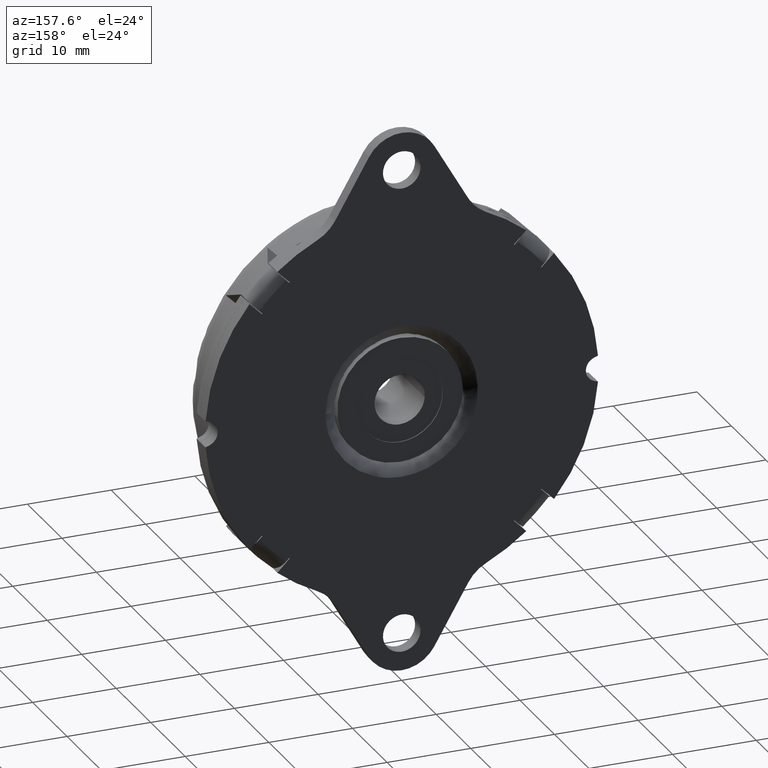
[diagram: clean part render]
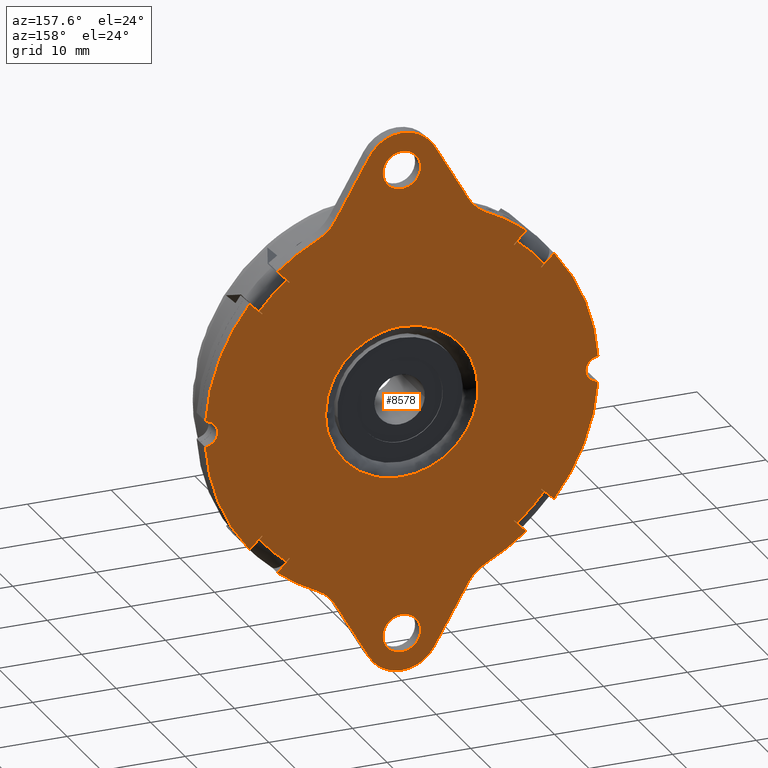
[diagram: same view with one face highlighted and labeled with its STEP entity id]
A machine part, auxiliary view. The second image highlights one B-rep face of the part: STEP entity #8578.
In plain terms, the highlighted face is a freeform B-spline surface patch.
Its self-contained STEP definition (entity closure, byte-faithful):
#3176=CARTESIAN_POINT('',(-2.243064000891092,6.938894E-018,28.176532965494960));
#3177=VERTEX_POINT('',#3176);
#3183=CARTESIAN_POINT('',(0.0,0.0,30.250000000000000));
#3184=VERTEX_POINT('',#3183);
#3185=CARTESIAN_POINT('',(0.0,0.0,30.250000000000000));
#3186=CARTESIAN_POINT('',(-2.079878606031345,0.0,30.249999999999996));
#3187=CARTESIAN_POINT('',(-2.243064000891093,6.938894E-018,28.176532965494964));
#3195=(BOUNDED_CURVE()B_SPLINE_CURVE(2,(#3185,#3186,#3187),.UNSPECIFIED.,.F.,.U.)B_SPLINE_CURVE_WITH_KNOTS((3,3),(0.0,0.236331300616365),.UNSPECIFIED.)CURVE()GEOMETRIC_REPRESENTATION_ITEM()RATIONAL_B_SPLINE_CURVE((1.0,0.723120658624413,0.969723356137586))REPRESENTATION_ITEM(''));
#3196=EDGE_CURVE('',#3184,#3177,#3195,.T.);
#3198=CARTESIAN_POINT('',(2.243064000891092,6.938894E-018,27.823467034505040));
#3199=VERTEX_POINT('',#3198);
#3200=CARTESIAN_POINT('',(2.243064000891093,6.938894E-018,27.823467034505040));
#3201=CARTESIAN_POINT('',(2.250000000000000,0.0,27.911597259124942));
#3202=CARTESIAN_POINT('',(2.250000000000000,0.0,28.0));
#3203=CARTESIAN_POINT('',(2.250000000000000,0.0,30.250000000000000));
#3204=CARTESIAN_POINT('',(0.0,0.0,30.250000000000000));
#3212=(BOUNDED_CURVE()B_SPLINE_CURVE(2,(#3200,#3201,#3202,#3203,#3204),.UNSPECIFIED.,.F.,.U.)B_SPLINE_CURVE_WITH_KNOTS((3,2,3),(0.736331300616365,0.750000000000000,1.0),.UNSPECIFIED.)CURVE()GEOMETRIC_REPRESENTATION_ITEM()RATIONAL_B_SPLINE_CURVE((0.969723356137586,0.983986122562134,1.0,0.707106781186547,1.0))REPRESENTATION_ITEM(''));
#3213=EDGE_CURVE('',#3199,#3184,#3212,.T.);
#3289=CARTESIAN_POINT('',(0.0,0.0,25.750000000000000));
#3290=VERTEX_POINT('',#3289);
#3291=CARTESIAN_POINT('',(0.0,0.0,25.750000000000000));
#3292=CARTESIAN_POINT('',(2.079878606031331,0.0,25.750000000000014));
#3293=CARTESIAN_POINT('',(2.243064000891092,6.938894E-018,27.823467034505036));
#3301=(BOUNDED_CURVE()B_SPLINE_CURVE(2,(#3291,#3292,#3293),.UNSPECIFIED.,.F.,.U.)B_SPLINE_CURVE_WITH_KNOTS((3,3),(0.500000000000000,0.736331300616364),.UNSPECIFIED.)CURVE()GEOMETRIC_REPRESENTATION_ITEM()RATIONAL_B_SPLINE_CURVE((1.0,0.723120658624414,0.969723356137583))REPRESENTATION_ITEM(''));
#3302=EDGE_CURVE('',#3290,#3199,#3301,.T.);
#3304=CARTESIAN_POINT('',(-2.243064000891093,6.938894E-018,28.176532965494964));
#3305=CARTESIAN_POINT('',(-2.250000000000000,0.0,28.088402740875068));
#3306=CARTESIAN_POINT('',(-2.250000000000000,0.0,28.0));
#3307=CARTESIAN_POINT('',(-2.250000000000000,0.0,25.750000000000004));
#3308=CARTESIAN_POINT('',(0.0,0.0,25.750000000000000));
#3316=(BOUNDED_CURVE()B_SPLINE_CURVE(2,(#3304,#3305,#3306,#3307,#3308),.UNSPECIFIED.,.F.,.U.)B_SPLINE_CURVE_WITH_KNOTS((3,2,3),(0.236331300616365,0.250000000000000,0.500000000000000),.UNSPECIFIED.)CURVE()GEOMETRIC_REPRESENTATION_ITEM()RATIONAL_B_SPLINE_CURVE((0.969723356137586,0.983986122562134,1.0,0.707106781186547,1.0))REPRESENTATION_ITEM(''));
#3317=EDGE_CURVE('',#3177,#3290,#3316,.T.);
#3358=CARTESIAN_POINT('',(-2.243064000891092,6.938894E-018,-27.823467034505040));
#3359=VERTEX_POINT('',#3358);
#3365=CARTESIAN_POINT('',(0.0,0.0,-25.750000000000000));
#3366=VERTEX_POINT('',#3365);
#3367=CARTESIAN_POINT('',(0.0,0.0,-25.750000000000000));
#3368=CARTESIAN_POINT('',(-2.079878606031341,0.0,-25.750000000000007));
#3369=CARTESIAN_POINT('',(-2.243064000891092,6.938894E-018,-27.823467034505033));
#3377=(BOUNDED_CURVE()B_SPLINE_CURVE(2,(#3367,#3368,#3369),.UNSPECIFIED.,.F.,.U.)B_SPLINE_CURVE_WITH_KNOTS((3,3),(0.0,0.236331300616364),.UNSPECIFIED.)CURVE()GEOMETRIC_REPRESENTATION_ITEM()RATIONAL_B_SPLINE_CURVE((1.0,0.723120658624413,0.969723356137585))REPRESENTATION_ITEM(''));
#3378=EDGE_CURVE('',#3366,#3359,#3377,.T.);
#3380=CARTESIAN_POINT('',(2.243064000891092,6.938894E-018,-28.176532965494960));
#3381=VERTEX_POINT('',#3380);
#3382=CARTESIAN_POINT('',(2.243064000891093,6.938894E-018,-28.176532965494964));
#3383=CARTESIAN_POINT('',(2.250000000000000,0.0,-28.088402740875068));
#3384=CARTESIAN_POINT('',(2.250000000000000,0.0,-28.0));
#3385=CARTESIAN_POINT('',(2.250000000000000,0.0,-25.750000000000004));
#3386=CARTESIAN_POINT('',(0.0,0.0,-25.750000000000000));
#3394=(BOUNDED_CURVE()B_SPLINE_CURVE(2,(#3382,#3383,#3384,#3385,#3386),.UNSPECIFIED.,.F.,.U.)B_SPLINE_CURVE_WITH_KNOTS((3,2,3),(0.736331300616365,0.750000000000000,1.0),.UNSPECIFIED.)CURVE()GEOMETRIC_REPRESENTATION_ITEM()RATIONAL_B_SPLINE_CURVE((0.969723356137586,0.983986122562134,1.0,0.707106781186547,1.0))REPRESENTATION_ITEM(''));
#3395=EDGE_CURVE('',#3381,#3366,#3394,.T.);
#3471=CARTESIAN_POINT('',(0.0,0.0,-30.250000000000000));
#3472=VERTEX_POINT('',#3471);
#3473=CARTESIAN_POINT('',(0.0,0.0,-30.250000000000000));
#3474=CARTESIAN_POINT('',(2.079878606031331,0.0,-30.249999999999996));
#3475=CARTESIAN_POINT('',(2.243064000891092,6.938894E-018,-28.176532965494960));
#3483=(BOUNDED_CURVE()B_SPLINE_CURVE(2,(#3473,#3474,#3475),.UNSPECIFIED.,.F.,.U.)B_SPLINE_CURVE_WITH_KNOTS((3,3),(0.500000000000000,0.736331300616364),.UNSPECIFIED.)CURVE()GEOMETRIC_REPRESENTATION_ITEM()RATIONAL_B_SPLINE_CURVE((1.0,0.723120658624414,0.969723356137583))REPRESENTATION_ITEM(''));
#3484=EDGE_CURVE('',#3472,#3381,#3483,.T.);
#3486=CARTESIAN_POINT('',(-2.243064000891092,6.938894E-018,-27.823467034505036));
#3487=CARTESIAN_POINT('',(-2.250000000000000,0.0,-27.911597259124928));
#3488=CARTESIAN_POINT('',(-2.250000000000000,0.0,-28.0));
#3489=CARTESIAN_POINT('',(-2.250000000000000,0.0,-30.250000000000000));
#3490=CARTESIAN_POINT('',(0.0,0.0,-30.250000000000000));
#3498=(BOUNDED_CURVE()B_SPLINE_CURVE(2,(#3486,#3487,#3488,#3489,#3490),.UNSPECIFIED.,.F.,.U.)B_SPLINE_CURVE_WITH_KNOTS((3,2,3),(0.236331300616364,0.250000000000000,0.500000000000000),.UNSPECIFIED.)CURVE()GEOMETRIC_REPRESENTATION_ITEM()RATIONAL_B_SPLINE_CURVE((0.969723356137585,0.983986122562134,1.0,0.707106781186547,1.0))REPRESENTATION_ITEM(''));
#3499=EDGE_CURVE('',#3359,#3472,#3498,.T.);
#3614=CARTESIAN_POINT('',(13.378870266796600,0.0,-16.702272138371701));
#3615=VERTEX_POINT('',#3614);
#3621=CARTESIAN_POINT('',(13.457224988665260,0.0,-16.639205504003051));
#3622=VERTEX_POINT('',#3621);
#3623=CARTESIAN_POINT('',(13.378870266796611,0.0,-16.702272138371718));
#3624=CARTESIAN_POINT('',(13.418121733153612,0.0,-16.670830890628817));
#3625=CARTESIAN_POINT('',(13.457224988665260,0.0,-16.639205504003058));
#3633=(BOUNDED_CURVE()B_SPLINE_CURVE(2,(#3623,#3624,#3625),.UNSPECIFIED.,.F.,.U.)CURVE()GEOMETRIC_REPRESENTATION_ITEM()QUASI_UNIFORM_CURVE()RATIONAL_B_SPLINE_CURVE((1.0,0.999997238602891,1.0))REPRESENTATION_ITEM(''));
#3634=EDGE_CURVE('',#3615,#3622,#3633,.T.);
#3748=CARTESIAN_POINT('',(16.639205504003051,0.0,-13.457224988665260));
#3749=VERTEX_POINT('',#3748);
#3755=CARTESIAN_POINT('',(16.702272138371701,0.0,-13.378870266796600));
#3756=VERTEX_POINT('',#3755);
#3757=CARTESIAN_POINT('',(16.639205504003051,0.0,-13.457224988665260));
#3758=CARTESIAN_POINT('',(16.670830890628807,0.0,-13.418121733153612));
#3759=CARTESIAN_POINT('',(16.702272138371711,0.0,-13.378870266796611));
#3767=(BOUNDED_CURVE()B_SPLINE_CURVE(2,(#3757,#3758,#3759),.UNSPECIFIED.,.F.,.U.)CURVE()GEOMETRIC_REPRESENTATION_ITEM()QUASI_UNIFORM_CURVE()RATIONAL_B_SPLINE_CURVE((1.0,0.999997238602891,1.0))REPRESENTATION_ITEM(''));
#3768=EDGE_CURVE('',#3749,#3756,#3767,.T.);
#3792=CARTESIAN_POINT('',(16.702272138371701,0.0,13.378870266796600));
#3793=VERTEX_POINT('',#3792);
#3799=CARTESIAN_POINT('',(16.639205504003051,0.0,13.457224988665260));
#3800=VERTEX_POINT('',#3799);
#3801=CARTESIAN_POINT('',(16.702272138371718,0.0,13.378870266796611));
#3802=CARTESIAN_POINT('',(16.670830890629105,0.0,13.418121733153241));
#3803=CARTESIAN_POINT('',(16.639205504003058,0.0,13.457224988665260));
#3811=(BOUNDED_CURVE()B_SPLINE_CURVE(2,(#3801,#3802,#3803),.UNSPECIFIED.,.F.,.U.)CURVE()GEOMETRIC_REPRESENTATION_ITEM()QUASI_UNIFORM_CURVE()RATIONAL_B_SPLINE_CURVE((1.0,0.999997238602891,1.0))REPRESENTATION_ITEM(''));
#3812=EDGE_CURVE('',#3793,#3800,#3811,.T.);
#3926=CARTESIAN_POINT('',(13.457224988665260,0.0,16.639205504003051));
#3927=VERTEX_POINT('',#3926);
#3933=CARTESIAN_POINT('',(13.378870266796600,0.0,16.702272138371701));
#3934=VERTEX_POINT('',#3933);
#3935=CARTESIAN_POINT('',(13.457224988665260,0.0,16.639205504003051));
#3936=CARTESIAN_POINT('',(13.418121733153262,0.0,16.670830890629098));
#3937=CARTESIAN_POINT('',(13.378870266796611,0.0,16.702272138371711));
#3945=(BOUNDED_CURVE()B_SPLINE_CURVE(2,(#3935,#3936,#3937),.UNSPECIFIED.,.F.,.U.)CURVE()GEOMETRIC_REPRESENTATION_ITEM()QUASI_UNIFORM_CURVE()RATIONAL_B_SPLINE_CURVE((1.0,0.999997238602891,1.0))REPRESENTATION_ITEM(''));
#3946=EDGE_CURVE('',#3927,#3934,#3945,.T.);
#3970=CARTESIAN_POINT('',(-13.378870266796600,0.0,16.702272138371701));
#3971=VERTEX_POINT('',#3970);
#3977=CARTESIAN_POINT('',(-13.457224988665260,0.0,16.639205504003051));
#3978=VERTEX_POINT('',#3977);
#3979=CARTESIAN_POINT('',(-13.378870266796611,0.0,16.702272138371718));
#3980=CARTESIAN_POINT('',(-13.418121733153610,0.0,16.670830890628814));
#3981=CARTESIAN_POINT('',(-13.457224988665260,0.0,16.639205504003058));
#3989=(BOUNDED_CURVE()B_SPLINE_CURVE(2,(#3979,#3980,#3981),.UNSPECIFIED.,.F.,.U.)CURVE()GEOMETRIC_REPRESENTATION_ITEM()QUASI_UNIFORM_CURVE()RATIONAL_B_SPLINE_CURVE((1.0,0.999997238602891,1.0))REPRESENTATION_ITEM(''));
#3990=EDGE_CURVE('',#3971,#3978,#3989,.T.);
#4104=CARTESIAN_POINT('',(-16.639205504003051,0.0,13.457224988665260));
#4105=VERTEX_POINT('',#4104);
#4111=CARTESIAN_POINT('',(-16.702272138371701,0.0,13.378870266796600));
#4112=VERTEX_POINT('',#4111);
#4113=CARTESIAN_POINT('',(-16.639205504003058,0.0,13.457224988665260));
#4114=CARTESIAN_POINT('',(-16.670830890628817,0.0,13.418121733153612));
#4115=CARTESIAN_POINT('',(-16.702272138371718,0.0,13.378870266796611));
#4123=(BOUNDED_CURVE()B_SPLINE_CURVE(2,(#4113,#4114,#4115),.UNSPECIFIED.,.F.,.U.)CURVE()GEOMETRIC_REPRESENTATION_ITEM()QUASI_UNIFORM_CURVE()RATIONAL_B_SPLINE_CURVE((1.0,0.999997238602891,1.0))REPRESENTATION_ITEM(''));
#4124=EDGE_CURVE('',#4105,#4112,#4123,.T.);
#4437=CARTESIAN_POINT('',(-16.702272138371701,0.0,-13.378870266796600));
#4438=VERTEX_POINT('',#4437);
#4444=CARTESIAN_POINT('',(-16.639205504003051,0.0,-13.457224988665260));
#4445=VERTEX_POINT('',#4444);
#4446=CARTESIAN_POINT('',(-16.702272138371718,0.0,-13.378870266796611));
#4447=CARTESIAN_POINT('',(-16.670830890628604,0.0,-13.418121733153880));
#4448=CARTESIAN_POINT('',(-16.639205504003058,0.0,-13.457224988665260));
#4456=(BOUNDED_CURVE()B_SPLINE_CURVE(2,(#4446,#4447,#4448),.UNSPECIFIED.,.F.,.U.)CURVE()GEOMETRIC_REPRESENTATION_ITEM()QUASI_UNIFORM_CURVE()RATIONAL_B_SPLINE_CURVE((1.0,0.999997238602891,1.0))REPRESENTATION_ITEM(''));
#4457=EDGE_CURVE('',#4438,#4445,#4456,.T.);
#4571=CARTESIAN_POINT('',(-13.457224988665260,0.0,-16.639205504003051));
#4572=VERTEX_POINT('',#4571);
#4578=CARTESIAN_POINT('',(-13.378870266796600,0.0,-16.702272138371701));
#4579=VERTEX_POINT('',#4578);
#4580=CARTESIAN_POINT('',(-13.457224988665260,0.0,-16.639205504003058));
#4581=CARTESIAN_POINT('',(-13.418121733153882,0.0,-16.670830890628597));
#4582=CARTESIAN_POINT('',(-13.378870266796611,0.0,-16.702272138371711));
#4590=(BOUNDED_CURVE()B_SPLINE_CURVE(2,(#4580,#4581,#4582),.UNSPECIFIED.,.F.,.U.)CURVE()GEOMETRIC_REPRESENTATION_ITEM()QUASI_UNIFORM_CURVE()RATIONAL_B_SPLINE_CURVE((1.0,0.999997238602891,1.0))REPRESENTATION_ITEM(''));
#4591=EDGE_CURVE('',#4572,#4579,#4590,.T.);
#4689=CARTESIAN_POINT('',(3.215047896283342,-2.284612E-014,-8.513134969000461));
#4690=VERTEX_POINT('',#4689);
#4704=CARTESIAN_POINT('',(0.0,0.0,-9.100000000000000));
#4705=VERTEX_POINT('',#4704);
#4706=CARTESIAN_POINT('',(0.0,0.0,-9.100000000000000));
#4707=CARTESIAN_POINT('',(1.661086224076434,0.0,-9.100000000000000));
#4708=CARTESIAN_POINT('',(3.215047896283341,-2.284612E-014,-8.513134969000461));
#4716=(BOUNDED_CURVE()B_SPLINE_CURVE(2,(#4706,#4707,#4708),.UNSPECIFIED.,.F.,.U.)B_SPLINE_CURVE_WITH_KNOTS((3,3),(0.500000000000000,0.560000000005414),.UNSPECIFIED.)CURVE()GEOMETRIC_REPRESENTATION_ITEM()RATIONAL_B_SPLINE_CURVE((1.0,0.929705627478429,0.893152553770256))REPRESENTATION_ITEM(''));
#4717=EDGE_CURVE('',#4705,#4690,#4716,.T.);
#4719=CARTESIAN_POINT('',(0.0,0.0,9.100000000000000));
#4720=VERTEX_POINT('',#4719);
#4721=CARTESIAN_POINT('',(0.0,0.0,9.100000000000000));
#4722=CARTESIAN_POINT('',(-9.100000000000000,0.0,9.100000000000000));
#4723=CARTESIAN_POINT('',(-9.100000000000000,0.0,0.0));
#4724=CARTESIAN_POINT('',(-9.100000000000000,0.0,-9.100000000000000));
#4725=CARTESIAN_POINT('',(0.0,0.0,-9.100000000000000));
#4733=(BOUNDED_CURVE()B_SPLINE_CURVE(2,(#4721,#4722,#4723,#4724,#4725),.UNSPECIFIED.,.F.,.U.)B_SPLINE_CURVE_WITH_KNOTS((3,2,3),(0.0,0.250000000000000,0.500000000000000),.UNSPECIFIED.)CURVE()GEOMETRIC_REPRESENTATION_ITEM()RATIONAL_B_SPLINE_CURVE((1.0,0.707106781186548,1.0,0.707106781186548,1.0))REPRESENTATION_ITEM(''));
#4734=EDGE_CURVE('',#4720,#4705,#4733,.T.);
#4736=CARTESIAN_POINT('',(9.099999999349208,-2.285745E-014,-2.280140E-015));
#4737=VERTEX_POINT('',#4736);
#4738=CARTESIAN_POINT('',(9.099999999349212,-2.285745E-014,-2.280140E-015));
#4739=CARTESIAN_POINT('',(9.100000000000005,0.0,9.100000000000000));
#4740=CARTESIAN_POINT('',(0.0,0.0,9.100000000000000));
#4748=(BOUNDED_CURVE()B_SPLINE_CURVE(2,(#4738,#4739,#4740),.UNSPECIFIED.,.F.,.U.)B_SPLINE_CURVE_WITH_KNOTS((3,3),(0.750000000000000,1.0),.UNSPECIFIED.)CURVE()GEOMETRIC_REPRESENTATION_ITEM()RATIONAL_B_SPLINE_CURVE((1.0,0.707106781186547,1.0))REPRESENTATION_ITEM(''));
#4749=EDGE_CURVE('',#4737,#4720,#4748,.T.);
#4790=CARTESIAN_POINT('',(3.215047896283342,-2.284612E-014,-8.513134969000461));
#4791=CARTESIAN_POINT('',(9.100000000000023,0.0,-6.290639620510472));
#4792=CARTESIAN_POINT('',(9.099999999349206,-2.285745E-014,-2.280140E-015));
#4800=(BOUNDED_CURVE()B_SPLINE_CURVE(2,(#4790,#4791,#4792),.UNSPECIFIED.,.F.,.U.)B_SPLINE_CURVE_WITH_KNOTS((3,3),(0.560000000005413,0.750000000000001),.UNSPECIFIED.)CURVE()GEOMETRIC_REPRESENTATION_ITEM()RATIONAL_B_SPLINE_CURVE((0.893152553770257,0.777401153708117,1.000000000000002))REPRESENTATION_ITEM(''));
#4801=EDGE_CURVE('',#4690,#4737,#4800,.T.);
#5381=CARTESIAN_POINT('',(-16.994682996746999,0.0,-13.812702481414640));
#5382=VERTEX_POINT('',#5381);
#5413=CARTESIAN_POINT('',(-13.812702481412520,-3.694822E-012,-16.994682996748651));
#5414=VERTEX_POINT('',#5413);
#5415=CARTESIAN_POINT('',(-13.812702481412520,-3.694822E-012,-16.994682996748651));
#5416=CARTESIAN_POINT('',(-15.568020218397098,0.0,-15.568020218399008));
#5417=CARTESIAN_POINT('',(-16.994682996747009,0.0,-13.812702481414640));
#5425=(BOUNDED_CURVE()B_SPLINE_CURVE(2,(#5415,#5416,#5417),.UNSPECIFIED.,.F.,.U.)CURVE()GEOMETRIC_REPRESENTATION_ITEM()QUASI_UNIFORM_CURVE()RATIONAL_B_SPLINE_CURVE((1.0,0.994708273161458,1.0))REPRESENTATION_ITEM(''));
#5426=EDGE_CURVE('',#5414,#5382,#5425,.T.);
#5491=CARTESIAN_POINT('',(-13.812702481414640,0.0,16.994682996746999));
#5492=VERTEX_POINT('',#5491);
#5523=CARTESIAN_POINT('',(-16.994682996748651,-3.694822E-012,13.812702481412520));
#5524=VERTEX_POINT('',#5523);
#5525=CARTESIAN_POINT('',(-16.994682996748651,-3.694822E-012,13.812702481412520));
#5526=CARTESIAN_POINT('',(-15.568020218399013,0.0,15.568020218397084));
#5527=CARTESIAN_POINT('',(-13.812702481414640,0.0,16.994682996747009));
#5535=(BOUNDED_CURVE()B_SPLINE_CURVE(2,(#5525,#5526,#5527),.UNSPECIFIED.,.F.,.U.)CURVE()GEOMETRIC_REPRESENTATION_ITEM()QUASI_UNIFORM_CURVE()RATIONAL_B_SPLINE_CURVE((1.0,0.994708273161458,1.0))REPRESENTATION_ITEM(''));
#5536=EDGE_CURVE('',#5524,#5492,#5535,.T.);
#5601=CARTESIAN_POINT('',(16.994682996746999,0.0,13.812702481414640));
#5602=VERTEX_POINT('',#5601);
#5633=CARTESIAN_POINT('',(13.812702481412520,-3.694822E-012,16.994682996748651));
#5634=VERTEX_POINT('',#5633);
#5635=CARTESIAN_POINT('',(13.812702481412520,-3.694822E-012,16.994682996748651));
#5636=CARTESIAN_POINT('',(15.568020218397086,0.0,15.568020218399015));
#5637=CARTESIAN_POINT('',(16.994682996746999,0.0,13.812702481414640));
#5645=(BOUNDED_CURVE()B_SPLINE_CURVE(2,(#5635,#5636,#5637),.UNSPECIFIED.,.F.,.U.)CURVE()GEOMETRIC_REPRESENTATION_ITEM()QUASI_UNIFORM_CURVE()RATIONAL_B_SPLINE_CURVE((1.0,0.994708273161458,1.0))REPRESENTATION_ITEM(''));
#5646=EDGE_CURVE('',#5634,#5602,#5645,.T.);
#5711=CARTESIAN_POINT('',(13.812702481414640,0.0,-16.994682996746999));
#5712=VERTEX_POINT('',#5711);
#5743=CARTESIAN_POINT('',(16.994682996748651,-3.694822E-012,-13.812702481412520));
#5744=VERTEX_POINT('',#5743);
#5745=CARTESIAN_POINT('',(16.994682996748651,-3.694822E-012,-13.812702481412520));
#5746=CARTESIAN_POINT('',(15.568020218399010,0.0,-15.568020218397091));
#5747=CARTESIAN_POINT('',(13.812702481414650,0.0,-16.994682996746999));
#5755=(BOUNDED_CURVE()B_SPLINE_CURVE(2,(#5745,#5746,#5747),.UNSPECIFIED.,.F.,.U.)CURVE()GEOMETRIC_REPRESENTATION_ITEM()QUASI_UNIFORM_CURVE()RATIONAL_B_SPLINE_CURVE((1.0,0.994708273161458,1.0))REPRESENTATION_ITEM(''));
#5756=EDGE_CURVE('',#5744,#5712,#5755,.T.);
#6269=CARTESIAN_POINT('',(-9.878849053840249,0.0,21.333653935793599));
#6270=VERTEX_POINT('',#6269);
#6278=CARTESIAN_POINT('',(-9.872841695713170,0.0,21.325501092621199));
#6279=VERTEX_POINT('',#6278);
#6280=CARTESIAN_POINT('',(-9.872841695713170,0.0,21.325501092621199));
#6281=CARTESIAN_POINT('',(-9.878849053840249,0.0,21.333653935793599));
#6282=QUASI_UNIFORM_CURVE('',1,(#6280,#6281),.UNSPECIFIED.,.F.,.U.);
#6283=EDGE_CURVE('',#6279,#6270,#6282,.T.);
#6707=CARTESIAN_POINT('',(-13.457224988665260,0.0,16.639205504003051));
#6708=CARTESIAN_POINT('',(-13.812702481414640,0.0,16.994682996746999));
#6709=QUASI_UNIFORM_CURVE('',1,(#6707,#6708),.UNSPECIFIED.,.F.,.U.);
#6710=EDGE_CURVE('',#3978,#5492,#6709,.T.);
#6730=CARTESIAN_POINT('',(-16.639205504003051,0.0,13.457224988665260));
#6731=CARTESIAN_POINT('',(-16.994682996748651,-3.694822E-012,13.812702481412520));
#6732=QUASI_UNIFORM_CURVE('',1,(#6730,#6731),.UNSPECIFIED.,.F.,.U.);
#6733=EDGE_CURVE('',#4105,#5524,#6732,.T.);
#6845=CARTESIAN_POINT('',(-16.639205504003051,0.0,-13.457224988665260));
#6846=CARTESIAN_POINT('',(-16.994682996746999,0.0,-13.812702481414640));
#6847=QUASI_UNIFORM_CURVE('',1,(#6845,#6846),.UNSPECIFIED.,.F.,.U.);
#6848=EDGE_CURVE('',#4445,#5382,#6847,.T.);
#6868=CARTESIAN_POINT('',(-13.457224988665260,0.0,-16.639205504003051));
#6869=CARTESIAN_POINT('',(-13.812702481412520,-3.694822E-012,-16.994682996748651));
#6870=QUASI_UNIFORM_CURVE('',1,(#6868,#6869),.UNSPECIFIED.,.F.,.U.);
#6871=EDGE_CURVE('',#4572,#5414,#6870,.T.);
#7071=CARTESIAN_POINT('',(13.457224988665260,0.0,-16.639205504003051));
#7072=CARTESIAN_POINT('',(13.812702481414640,0.0,-16.994682996746999));
#7073=QUASI_UNIFORM_CURVE('',1,(#7071,#7072),.UNSPECIFIED.,.F.,.U.);
#7074=EDGE_CURVE('',#3622,#5712,#7073,.T.);
#7090=CARTESIAN_POINT('',(16.639205504003051,0.0,-13.457224988665260));
#7091=CARTESIAN_POINT('',(16.994682996748651,-3.694822E-012,-13.812702481412520));
#7092=QUASI_UNIFORM_CURVE('',1,(#7090,#7091),.UNSPECIFIED.,.F.,.U.);
#7093=EDGE_CURVE('',#3749,#5744,#7092,.T.);
#7269=CARTESIAN_POINT('',(16.639205504003051,0.0,13.457224988665260));
#7270=CARTESIAN_POINT('',(16.994682996746999,0.0,13.812702481414640));
#7271=QUASI_UNIFORM_CURVE('',1,(#7269,#7270),.UNSPECIFIED.,.F.,.U.);
#7272=EDGE_CURVE('',#3800,#5602,#7271,.T.);
#7288=CARTESIAN_POINT('',(13.457224988665260,0.0,16.639205504003051));
#7289=CARTESIAN_POINT('',(13.812702481412520,-3.694822E-012,16.994682996748651));
#7290=QUASI_UNIFORM_CURVE('',1,(#7288,#7289),.UNSPECIFIED.,.F.,.U.);
#7291=EDGE_CURVE('',#3927,#5634,#7290,.T.);
#7557=CARTESIAN_POINT('',(10.133315336214080,0.0,-21.202969610336400));
#7558=VERTEX_POINT('',#7557);
#7559=CARTESIAN_POINT('',(7.959199999999911,0.0,-23.214234999999949));
#7560=VERTEX_POINT('',#7559);
#7561=CARTESIAN_POINT('',(10.133315336214080,0.0,-21.202969610336400));
#7562=CARTESIAN_POINT('',(8.734418405083275,0.0,-21.871513759987689));
#7563=CARTESIAN_POINT('',(7.959199999999908,0.0,-23.214234999999949));
#7571=(BOUNDED_CURVE()B_SPLINE_CURVE(2,(#7561,#7562,#7563),.UNSPECIFIED.,.F.,.U.)CURVE()GEOMETRIC_REPRESENTATION_ITEM()QUASI_UNIFORM_CURVE()RATIONAL_B_SPLINE_CURVE((1.0,0.955132279473545,1.0))REPRESENTATION_ITEM(''));
#7572=EDGE_CURVE('',#7558,#7560,#7571,.T.);
#7602=CARTESIAN_POINT('',(7.959218677293991,0.0,23.214233630755398));
#7603=VERTEX_POINT('',#7602);
#7604=CARTESIAN_POINT('',(10.133317947546679,0.0,21.202968362329099));
#7605=VERTEX_POINT('',#7604);
#7606=CARTESIAN_POINT('',(7.959218677294005,0.0,23.214233630755409));
#7607=CARTESIAN_POINT('',(8.734435536711960,0.0,21.871521934545171));
#7608=CARTESIAN_POINT('',(10.133317947546690,0.0,21.202968362329120));
#7616=(BOUNDED_CURVE()B_SPLINE_CURVE(2,(#7606,#7607,#7608),.UNSPECIFIED.,.F.,.U.)CURVE()GEOMETRIC_REPRESENTATION_ITEM()QUASI_UNIFORM_CURVE()RATIONAL_B_SPLINE_CURVE((1.0,0.955134044954471,1.0))REPRESENTATION_ITEM(''));
#7617=EDGE_CURVE('',#7603,#7605,#7616,.T.);
#7654=CARTESIAN_POINT('',(3.900853128904610,0.0,30.243511726449199));
#7655=VERTEX_POINT('',#7654);
#7656=CARTESIAN_POINT('',(3.900853128904610,0.0,30.243511726449199));
#7657=CARTESIAN_POINT('',(7.959218677293991,0.0,23.214233630755398));
#7658=QUASI_UNIFORM_CURVE('',1,(#7656,#7657),.UNSPECIFIED.,.F.,.U.);
#7659=EDGE_CURVE('',#7655,#7603,#7658,.T.);
#7693=CARTESIAN_POINT('',(-3.893359923277215,0.0,30.256490307495000));
#7694=VERTEX_POINT('',#7693);
#7716=CARTESIAN_POINT('',(3.900853128904615,0.0,30.243511726449199));
#7717=CARTESIAN_POINT('',(2.605562617184204,0.0,32.495667570306537));
#7718=CARTESIAN_POINT('',(0.007493191852223,0.0,32.499993761337443));
#7719=CARTESIAN_POINT('',(-2.590576233479755,0.0,32.504319952368341));
#7720=CARTESIAN_POINT('',(-3.893359923277210,0.0,30.256490307495000));
#7728=(BOUNDED_CURVE()B_SPLINE_CURVE(2,(#7716,#7717,#7718,#7719,#7720),.UNSPECIFIED.,.F.,.U.)B_SPLINE_CURVE_WITH_KNOTS((3,2,3),(0.0,0.500000000000000,1.0),.UNSPECIFIED.)CURVE()GEOMETRIC_REPRESENTATION_ITEM()RATIONAL_B_SPLINE_CURVE((1.0,0.866025669128751,1.0,0.866025669128751,1.0))REPRESENTATION_ITEM(''));
#7729=EDGE_CURVE('',#7655,#7694,#7728,.T.);
#7739=CARTESIAN_POINT('',(-7.959218677293991,0.0,23.214233630755398));
#7740=VERTEX_POINT('',#7739);
#7741=CARTESIAN_POINT('',(-7.959218677293991,0.0,23.214233630755398));
#7742=CARTESIAN_POINT('',(-3.893359923277215,0.0,30.256490307495000));
#7743=QUASI_UNIFORM_CURVE('',1,(#7741,#7742),.UNSPECIFIED.,.F.,.U.);
#7744=EDGE_CURVE('',#7740,#7694,#7743,.T.);
#7776=CARTESIAN_POINT('',(-7.959210000000000,0.0,-23.214234999999949));
#7777=VERTEX_POINT('',#7776);
#7778=CARTESIAN_POINT('',(-10.133311174469799,0.0,-21.202969528863651));
#7779=VERTEX_POINT('',#7778);
#7780=CARTESIAN_POINT('',(-7.959210000000000,0.0,-23.214234999999949));
#7781=CARTESIAN_POINT('',(-8.734427895752038,0.0,-21.871523032216757));
#7782=CARTESIAN_POINT('',(-10.133311174469830,0.0,-21.202969528863711));
#7790=(BOUNDED_CURVE()B_SPLINE_CURVE(2,(#7780,#7781,#7782),.UNSPECIFIED.,.F.,.U.)CURVE()GEOMETRIC_REPRESENTATION_ITEM()QUASI_UNIFORM_CURVE()RATIONAL_B_SPLINE_CURVE((1.0,0.955134004243989,1.0))REPRESENTATION_ITEM(''));
#7791=EDGE_CURVE('',#7777,#7779,#7790,.T.);
#7812=CARTESIAN_POINT('',(-3.897125042146750,0.0,-30.249994926999399));
#7813=VERTEX_POINT('',#7812);
#7814=CARTESIAN_POINT('',(-3.897125042146750,0.0,-30.249994926999399));
#7815=CARTESIAN_POINT('',(-7.959210000000000,0.0,-23.214234999999949));
#7816=QUASI_UNIFORM_CURVE('',1,(#7814,#7815),.UNSPECIFIED.,.F.,.U.);
#7817=EDGE_CURVE('',#7813,#7777,#7816,.T.);
#7843=CARTESIAN_POINT('',(3.897113138932185,0.0,-30.250002040523949));
#7844=VERTEX_POINT('',#7843);
#7845=CARTESIAN_POINT('',(-3.897125042146755,0.0,-30.249994926999399));
#7846=CARTESIAN_POINT('',(-2.598088125369480,0.0,-32.500000127029665));
#7847=CARTESIAN_POINT('',(-0.000008005106092,0.0,-32.500002498205177));
#7848=CARTESIAN_POINT('',(2.598072115157295,0.0,-32.500004869380696));
#7849=CARTESIAN_POINT('',(3.897113138932180,0.0,-30.250002040523949));
#7857=(BOUNDED_CURVE()B_SPLINE_CURVE(2,(#7845,#7846,#7847,#7848,#7849),.UNSPECIFIED.,.F.,.U.)B_SPLINE_CURVE_WITH_KNOTS((3,2,3),(0.0,0.500000000000000,1.0),.UNSPECIFIED.)CURVE()GEOMETRIC_REPRESENTATION_ITEM()RATIONAL_B_SPLINE_CURVE((1.0,0.866025282689544,1.0,0.866025282689544,1.0))REPRESENTATION_ITEM(''));
#7858=EDGE_CURVE('',#7813,#7844,#7857,.T.);
#7875=CARTESIAN_POINT('',(7.959199999999911,0.0,-23.214234999999949));
#7876=CARTESIAN_POINT('',(3.897113138932185,0.0,-30.250002040523949));
#7877=QUASI_UNIFORM_CURVE('',1,(#7875,#7876),.UNSPECIFIED.,.F.,.U.);
#7878=EDGE_CURVE('',#7560,#7844,#7877,.T.);
#8039=CARTESIAN_POINT('',(-9.878849053840249,0.0,21.333653935793599));
#8040=CARTESIAN_POINT('',(-8.656700367128382,0.0,22.006162867773927));
#8041=CARTESIAN_POINT('',(-7.959218677293985,0.0,23.214233630755398));
#8049=(BOUNDED_CURVE()B_SPLINE_CURVE(2,(#8039,#8040,#8041),.UNSPECIFIED.,.F.,.U.)CURVE()GEOMETRIC_REPRESENTATION_ITEM()QUASI_UNIFORM_CURVE()RATIONAL_B_SPLINE_CURVE((1.0,0.963215652013288,1.0))REPRESENTATION_ITEM(''));
#8050=EDGE_CURVE('',#6270,#7740,#8049,.T.);
#8296=CARTESIAN_POINT('',(-25.789387116877570,0.0,35.746742229550463));
#8297=CARTESIAN_POINT('',(25.789387536143099,0.0,35.746742229550463));
#8298=CARTESIAN_POINT('',(-25.789387116877570,0.0,-35.746753870832343));
#8299=CARTESIAN_POINT('',(25.789387536143110,0.0,-35.746753870832343));
#8300=B_SPLINE_SURFACE_WITH_KNOTS('',1,1,((#8296,#8298),(#8297,#8299)),.UNSPECIFIED.,.F.,.F.,.U.,(2,2),(2,2),(0.0,51.578774653020673),(0.0,71.493496100382799),.UNSPECIFIED.);
#8301=ORIENTED_EDGE('',*,*,#7093,.T.);
#8302=ORIENTED_EDGE('',*,*,#5756,.T.);
#8303=ORIENTED_EDGE('',*,*,#7074,.F.);
#8304=ORIENTED_EDGE('',*,*,#3634,.F.);
#8305=CARTESIAN_POINT('',(14.872014617590120,0.0,-18.195416489165201));
#8306=VERTEX_POINT('',#8305);
#8307=CARTESIAN_POINT('',(14.872014617590120,0.0,-18.195416489165201));
#8308=CARTESIAN_POINT('',(13.378870266796600,0.0,-16.702272138371701));
#8309=QUASI_UNIFORM_CURVE('',1,(#8307,#8308),.UNSPECIFIED.,.F.,.U.);
#8310=EDGE_CURVE('',#8306,#3615,#8309,.T.);
#8311=ORIENTED_EDGE('',*,*,#8310,.F.);
#8312=CARTESIAN_POINT('',(10.133315336214070,0.0,-21.202969610336400));
#8313=CARTESIAN_POINT('',(12.683533931508522,0.0,-19.984170089452416));
#8314=CARTESIAN_POINT('',(14.872014617590130,0.0,-18.195416489165218));
#8322=(BOUNDED_CURVE()B_SPLINE_CURVE(2,(#8312,#8313,#8314),.UNSPECIFIED.,.F.,.U.)CURVE()GEOMETRIC_REPRESENTATION_ITEM()QUASI_UNIFORM_CURVE()RATIONAL_B_SPLINE_CURVE((1.0,0.992844328774064,1.0))REPRESENTATION_ITEM(''));
#8323=EDGE_CURVE('',#7558,#8306,#8322,.T.);
#8324=ORIENTED_EDGE('',*,*,#8323,.F.);
#8325=ORIENTED_EDGE('',*,*,#7572,.T.);
#8326=ORIENTED_EDGE('',*,*,#7878,.T.);
#8327=ORIENTED_EDGE('',*,*,#7858,.F.);
#8328=ORIENTED_EDGE('',*,*,#7817,.T.);
#8329=ORIENTED_EDGE('',*,*,#7791,.T.);
#8330=CARTESIAN_POINT('',(-14.872014617590141,0.0,-18.195416489165201));
#8331=VERTEX_POINT('',#8330);
#8332=CARTESIAN_POINT('',(-14.872014617590141,0.0,-18.195416489165201));
#8333=CARTESIAN_POINT('',(-12.683532067836728,0.0,-19.984170440788642));
#8334=CARTESIAN_POINT('',(-10.133311174469799,0.0,-21.202969528863651));
#8342=(BOUNDED_CURVE()B_SPLINE_CURVE(2,(#8332,#8333,#8334),.UNSPECIFIED.,.F.,.U.)CURVE()GEOMETRIC_REPRESENTATION_ITEM()QUASI_UNIFORM_CURVE()RATIONAL_B_SPLINE_CURVE((1.0,0.992844319322885,1.0))REPRESENTATION_ITEM(''));
#8343=EDGE_CURVE('',#8331,#7779,#8342,.T.);
#8344=ORIENTED_EDGE('',*,*,#8343,.F.);
#8345=CARTESIAN_POINT('',(-13.378870266796600,0.0,-16.702272138371701));
#8346=CARTESIAN_POINT('',(-14.872014617590141,0.0,-18.195416489165201));
#8347=QUASI_UNIFORM_CURVE('',1,(#8345,#8346),.UNSPECIFIED.,.F.,.U.);
#8348=EDGE_CURVE('',#4579,#8331,#8347,.T.);
#8349=ORIENTED_EDGE('',*,*,#8348,.F.);
#8350=ORIENTED_EDGE('',*,*,#4591,.F.);
#8351=ORIENTED_EDGE('',*,*,#6871,.T.);
#8352=ORIENTED_EDGE('',*,*,#5426,.T.);
#8353=ORIENTED_EDGE('',*,*,#6848,.F.);
#8354=ORIENTED_EDGE('',*,*,#4457,.F.);
#8355=CARTESIAN_POINT('',(-18.195416489165201,0.0,-14.872014617590120));
#8356=VERTEX_POINT('',#8355);
#8357=CARTESIAN_POINT('',(-18.195416489165201,0.0,-14.872014617590120));
#8358=CARTESIAN_POINT('',(-16.702272138371701,0.0,-13.378870266796600));
#8359=QUASI_UNIFORM_CURVE('',1,(#8357,#8358),.UNSPECIFIED.,.F.,.U.);
#8360=EDGE_CURVE('',#8356,#4438,#8359,.T.);
#8361=ORIENTED_EDGE('',*,*,#8360,.F.);
#8362=CARTESIAN_POINT('',(-23.447028209247801,0.0,-1.576980708423025));
#8363=VERTEX_POINT('',#8362);
#8364=CARTESIAN_POINT('',(-23.447028209247790,0.0,-1.576980708423027));
#8365=CARTESIAN_POINT('',(-22.943551236547741,0.0,-9.062829278764694));
#8366=CARTESIAN_POINT('',(-18.195416489165229,0.0,-14.872014617590120));
#8374=(BOUNDED_CURVE()B_SPLINE_CURVE(2,(#8364,#8365,#8366),.UNSPECIFIED.,.F.,.U.)CURVE()GEOMETRIC_REPRESENTATION_ITEM()QUASI_UNIFORM_CURVE()RATIONAL_B_SPLINE_CURVE((1.0,0.952626791242617,1.0))REPRESENTATION_ITEM(''));
#8375=EDGE_CURVE('',#8363,#8356,#8374,.T.);
#8376=ORIENTED_EDGE('',*,*,#8375,.F.);
#8377=CARTESIAN_POINT('',(-22.991817924034599,0.0,-1.411294079087524));
#8378=VERTEX_POINT('',#8377);
#8379=CARTESIAN_POINT('',(-23.447028209247801,0.0,-1.576980708423025));
#8380=CARTESIAN_POINT('',(-22.991817924034599,0.0,-1.411294079087524));
#8381=QUASI_UNIFORM_CURVE('',1,(#8379,#8380),.UNSPECIFIED.,.F.,.U.);
#8382=EDGE_CURVE('',#8363,#8378,#8381,.T.);
#8383=ORIENTED_EDGE('',*,*,#8382,.T.);
#8384=CARTESIAN_POINT('',(-22.986954999999899,0.0,1.409545000000000));
#8385=VERTEX_POINT('',#8384);
#8386=CARTESIAN_POINT('',(-22.991817924034589,0.0,-1.411294079087542));
#8387=CARTESIAN_POINT('',(-22.001787478122925,0.0,-1.054827879631149));
#8388=CARTESIAN_POINT('',(-21.999973478703581,0.0,-0.002580216486658));
#8389=CARTESIAN_POINT('',(-21.998159479284229,0.0,1.049667446657833));
#8390=CARTESIAN_POINT('',(-22.986954999999899,0.0,1.409545000000002));
#8398=(BOUNDED_CURVE()B_SPLINE_CURVE(2,(#8386,#8387,#8388,#8389,#8390),.UNSPECIFIED.,.F.,.U.)B_SPLINE_CURVE_WITH_KNOTS((3,2,3),(0.0,0.500000000000000,1.0),.UNSPECIFIED.)CURVE()GEOMETRIC_REPRESENTATION_ITEM()RATIONAL_B_SPLINE_CURVE((1.0,0.818653598503861,1.0,0.818653598503861,1.0))REPRESENTATION_ITEM(''));
#8399=EDGE_CURVE('',#8378,#8385,#8398,.T.);
#8400=ORIENTED_EDGE('',*,*,#8399,.T.);
#8401=CARTESIAN_POINT('',(-23.447027522571350,0.0,1.576990918103645));
#8402=VERTEX_POINT('',#8401);
#8403=CARTESIAN_POINT('',(-22.986954999999899,0.0,1.409545000000000));
#8404=CARTESIAN_POINT('',(-23.447027522571350,0.0,1.576990918103645));
#8405=QUASI_UNIFORM_CURVE('',1,(#8403,#8404),.UNSPECIFIED.,.F.,.U.);
#8406=EDGE_CURVE('',#8385,#8402,#8405,.T.);
#8407=ORIENTED_EDGE('',*,*,#8406,.T.);
#8408=CARTESIAN_POINT('',(-18.195416489165201,0.0,14.872014617590141));
#8409=VERTEX_POINT('',#8408);
#8410=CARTESIAN_POINT('',(-18.195416489165211,0.0,14.872014617590141));
#8411=CARTESIAN_POINT('',(-22.943547668599436,0.0,9.062833644031068));
#8412=CARTESIAN_POINT('',(-23.447027522571361,0.0,1.576990918103642));
#8420=(BOUNDED_CURVE()B_SPLINE_CURVE(2,(#8410,#8411,#8412),.UNSPECIFIED.,.F.,.U.)CURVE()GEOMETRIC_REPRESENTATION_ITEM()QUASI_UNIFORM_CURVE()RATIONAL_B_SPLINE_CURVE((1.0,0.952626857459729,1.0))REPRESENTATION_ITEM(''));
#8421=EDGE_CURVE('',#8409,#8402,#8420,.T.);
#8422=ORIENTED_EDGE('',*,*,#8421,.F.);
#8423=CARTESIAN_POINT('',(-16.702272138371701,0.0,13.378870266796600));
#8424=CARTESIAN_POINT('',(-18.195416489165201,0.0,14.872014617590141));
#8425=QUASI_UNIFORM_CURVE('',1,(#8423,#8424),.UNSPECIFIED.,.F.,.U.);
#8426=EDGE_CURVE('',#4112,#8409,#8425,.T.);
#8427=ORIENTED_EDGE('',*,*,#8426,.F.);
#8428=ORIENTED_EDGE('',*,*,#4124,.F.);
#8429=ORIENTED_EDGE('',*,*,#6733,.T.);
#8430=ORIENTED_EDGE('',*,*,#5536,.T.);
#8431=ORIENTED_EDGE('',*,*,#6710,.F.);
#8432=ORIENTED_EDGE('',*,*,#3990,.F.);
#8433=CARTESIAN_POINT('',(-14.872014617590120,0.0,18.195416489165201));
#8434=VERTEX_POINT('',#8433);
#8435=CARTESIAN_POINT('',(-14.872014617590120,0.0,18.195416489165201));
#8436=CARTESIAN_POINT('',(-13.378870266796600,0.0,16.702272138371701));
#8437=QUASI_UNIFORM_CURVE('',1,(#8435,#8436),.UNSPECIFIED.,.F.,.U.);
#8438=EDGE_CURVE('',#8434,#3971,#8437,.T.);
#8439=ORIENTED_EDGE('',*,*,#8438,.F.);
#8440=CARTESIAN_POINT('',(-9.872841695713175,0.0,21.325501092621192));
#8441=CARTESIAN_POINT('',(-12.570397170913509,0.0,20.076642364454070));
#8442=CARTESIAN_POINT('',(-14.872014617590130,0.0,18.195416489165218));
#8450=(BOUNDED_CURVE()B_SPLINE_CURVE(2,(#8440,#8441,#8442),.UNSPECIFIED.,.F.,.U.)CURVE()GEOMETRIC_REPRESENTATION_ITEM()QUASI_UNIFORM_CURVE()RATIONAL_B_SPLINE_CURVE((1.0,0.992094336588047,1.0))REPRESENTATION_ITEM(''));
#8451=EDGE_CURVE('',#6279,#8434,#8450,.T.);
#8452=ORIENTED_EDGE('',*,*,#8451,.F.);
#8453=ORIENTED_EDGE('',*,*,#6283,.T.);
#8454=ORIENTED_EDGE('',*,*,#8050,.T.);
#8455=ORIENTED_EDGE('',*,*,#7744,.T.);
#8456=ORIENTED_EDGE('',*,*,#7729,.F.);
#8457=ORIENTED_EDGE('',*,*,#7659,.T.);
#8458=ORIENTED_EDGE('',*,*,#7617,.T.);
#8459=CARTESIAN_POINT('',(14.872014617590141,0.0,18.195416489165201));
#8460=VERTEX_POINT('',#8459);
#8461=CARTESIAN_POINT('',(14.872014617590141,0.0,18.195416489165211));
#8462=CARTESIAN_POINT('',(12.683535068180625,0.0,19.984169160394043));
#8463=CARTESIAN_POINT('',(10.133317947546690,0.0,21.202968362329091));
#8471=(BOUNDED_CURVE()B_SPLINE_CURVE(2,(#8461,#8462,#8463),.UNSPECIFIED.,.F.,.U.)CURVE()GEOMETRIC_REPRESENTATION_ITEM()QUASI_UNIFORM_CURVE()RATIONAL_B_SPLINE_CURVE((1.0,0.992844336127618,1.0))REPRESENTATION_ITEM(''));
#8472=EDGE_CURVE('',#8460,#7605,#8471,.T.);
#8473=ORIENTED_EDGE('',*,*,#8472,.F.);
#8474=CARTESIAN_POINT('',(13.378870266796600,0.0,16.702272138371701));
#8475=CARTESIAN_POINT('',(14.872014617590141,0.0,18.195416489165201));
#8476=QUASI_UNIFORM_CURVE('',1,(#8474,#8475),.UNSPECIFIED.,.F.,.U.);
#8477=EDGE_CURVE('',#3934,#8460,#8476,.T.);
#8478=ORIENTED_EDGE('',*,*,#8477,.F.);
#8479=ORIENTED_EDGE('',*,*,#3946,.F.);
#8480=ORIENTED_EDGE('',*,*,#7291,.T.);
#8481=ORIENTED_EDGE('',*,*,#5646,.T.);
#8482=ORIENTED_EDGE('',*,*,#7272,.F.);
#8483=ORIENTED_EDGE('',*,*,#3812,.F.);
#8484=CARTESIAN_POINT('',(18.195416489165201,0.0,14.872014617590120));
#8485=VERTEX_POINT('',#8484);
#8486=CARTESIAN_POINT('',(18.195416489165201,0.0,14.872014617590120));
#8487=CARTESIAN_POINT('',(16.702272138371701,0.0,13.378870266796600));
#8488=QUASI_UNIFORM_CURVE('',1,(#8486,#8487),.UNSPECIFIED.,.F.,.U.);
#8489=EDGE_CURVE('',#8485,#3793,#8488,.T.);
#8490=ORIENTED_EDGE('',*,*,#8489,.F.);
#8491=CARTESIAN_POINT('',(23.447027522571350,0.0,1.576990918103620));
#8492=VERTEX_POINT('',#8491);
#8493=CARTESIAN_POINT('',(23.447027522571361,0.0,1.576990918103616));
#8494=CARTESIAN_POINT('',(22.943547668599450,0.0,9.062833644031043));
#8495=CARTESIAN_POINT('',(18.195416489165229,0.0,14.872014617590120));
#8503=(BOUNDED_CURVE()B_SPLINE_CURVE(2,(#8493,#8494,#8495),.UNSPECIFIED.,.F.,.U.)CURVE()GEOMETRIC_REPRESENTATION_ITEM()QUASI_UNIFORM_CURVE()RATIONAL_B_SPLINE_CURVE((1.0,0.952626857459729,1.0))REPRESENTATION_ITEM(''));
#8504=EDGE_CURVE('',#8492,#8485,#8503,.T.);
#8505=ORIENTED_EDGE('',*,*,#8504,.F.);
#8506=CARTESIAN_POINT('',(22.986954999999899,0.0,1.409545000000000));
#8507=VERTEX_POINT('',#8506);
#8508=CARTESIAN_POINT('',(23.447027522571350,0.0,1.576990918103620));
#8509=CARTESIAN_POINT('',(22.986954999999899,0.0,1.409545000000000));
#8510=QUASI_UNIFORM_CURVE('',1,(#8508,#8509),.UNSPECIFIED.,.F.,.U.);
#8511=EDGE_CURVE('',#8492,#8507,#8510,.T.);
#8512=ORIENTED_EDGE('',*,*,#8511,.T.);
#8513=CARTESIAN_POINT('',(22.991817924034599,0.0,-1.411294079087534));
#8514=VERTEX_POINT('',#8513);
#8515=CARTESIAN_POINT('',(22.986954999999899,0.0,1.409545000000002));
#8516=CARTESIAN_POINT('',(21.998159479284222,0.0,1.049667446657833));
#8517=CARTESIAN_POINT('',(21.999973478703581,0.0,-0.002580216486659));
#8518=CARTESIAN_POINT('',(22.001787478122935,0.0,-1.054827879631151));
#8519=CARTESIAN_POINT('',(22.991817924034599,0.0,-1.411294079087543));
#8527=(BOUNDED_CURVE()B_SPLINE_CURVE(2,(#8515,#8516,#8517,#8518,#8519),.UNSPECIFIED.,.F.,.U.)B_SPLINE_CURVE_WITH_KNOTS((3,2,3),(0.0,0.500000000000000,1.0),.UNSPECIFIED.)CURVE()GEOMETRIC_REPRESENTATION_ITEM()RATIONAL_B_SPLINE_CURVE((1.0,0.818653598503861,1.0,0.818653598503861,1.0))REPRESENTATION_ITEM(''));
#8528=EDGE_CURVE('',#8507,#8514,#8527,.T.);
#8529=ORIENTED_EDGE('',*,*,#8528,.T.);
#8530=CARTESIAN_POINT('',(23.447028209247801,0.0,-1.576980708423055));
#8531=VERTEX_POINT('',#8530);
#8532=CARTESIAN_POINT('',(22.991817924034599,0.0,-1.411294079087534));
#8533=CARTESIAN_POINT('',(23.447028209247801,0.0,-1.576980708423055));
#8534=QUASI_UNIFORM_CURVE('',1,(#8532,#8533),.UNSPECIFIED.,.F.,.U.);
#8535=EDGE_CURVE('',#8514,#8531,#8534,.T.);
#8536=ORIENTED_EDGE('',*,*,#8535,.T.);
#8537=CARTESIAN_POINT('',(18.195416489165201,0.0,-14.872014617590141));
#8538=VERTEX_POINT('',#8537);
#8539=CARTESIAN_POINT('',(18.195416489165190,0.0,-14.872014617590160));
#8540=CARTESIAN_POINT('',(22.943551236547723,0.0,-9.062829278764724));
#8541=CARTESIAN_POINT('',(23.447028209247790,0.0,-1.576980708423053));
#8549=(BOUNDED_CURVE()B_SPLINE_CURVE(2,(#8539,#8540,#8541),.UNSPECIFIED.,.F.,.U.)CURVE()GEOMETRIC_REPRESENTATION_ITEM()QUASI_UNIFORM_CURVE()RATIONAL_B_SPLINE_CURVE((1.0,0.952626791242617,1.0))REPRESENTATION_ITEM(''));
#8550=EDGE_CURVE('',#8538,#8531,#8549,.T.);
#8551=ORIENTED_EDGE('',*,*,#8550,.F.);
#8552=CARTESIAN_POINT('',(16.702272138371701,0.0,-13.378870266796600));
#8553=CARTESIAN_POINT('',(18.195416489165201,0.0,-14.872014617590141));
#8554=QUASI_UNIFORM_CURVE('',1,(#8552,#8553),.UNSPECIFIED.,.F.,.U.);
#8555=EDGE_CURVE('',#3756,#8538,#8554,.T.);
#8556=ORIENTED_EDGE('',*,*,#8555,.F.);
#8557=ORIENTED_EDGE('',*,*,#3768,.F.);
#8558=EDGE_LOOP('',(#8301,#8302,#8303,#8304,#8311,#8324,#8325,#8326,#8327,#8328,#8329,#8344,#8349,#8350,#8351,#8352,#8353,#8354,#8361,#8376,#8383,#8400,#8407,#8422,#8427,#8428,#8429,#8430,#8431,#8432,#8439,#8452,#8453,#8454,#8455,#8456,#8457,#8458,#8473,#8478,#8479,#8480,#8481,#8482,#8483,#8490,#8505,#8512,#8529,#8536,#8551,#8556,#8557));
#8559=FACE_OUTER_BOUND('',#8558,.T.);
#8560=ORIENTED_EDGE('',*,*,#4734,.T.);
#8561=ORIENTED_EDGE('',*,*,#4717,.T.);
#8562=ORIENTED_EDGE('',*,*,#4801,.T.);
#8563=ORIENTED_EDGE('',*,*,#4749,.T.);
#8564=EDGE_LOOP('',(#8560,#8561,#8562,#8563));
#8565=FACE_BOUND('',#8564,.T.);
#8566=ORIENTED_EDGE('',*,*,#3484,.T.);
#8567=ORIENTED_EDGE('',*,*,#3395,.T.);
#8568=ORIENTED_EDGE('',*,*,#3378,.T.);
#8569=ORIENTED_EDGE('',*,*,#3499,.T.);
#8570=EDGE_LOOP('',(#8566,#8567,#8568,#8569));
#8571=FACE_BOUND('',#8570,.T.);
#8572=ORIENTED_EDGE('',*,*,#3302,.T.);
#8573=ORIENTED_EDGE('',*,*,#3213,.T.);
#8574=ORIENTED_EDGE('',*,*,#3196,.T.);
#8575=ORIENTED_EDGE('',*,*,#3317,.T.);
#8576=EDGE_LOOP('',(#8572,#8573,#8574,#8575));
#8577=FACE_BOUND('',#8576,.T.);
#8578=ADVANCED_FACE('',(#8559,#8565,#8571,#8577),#8300,.T.);